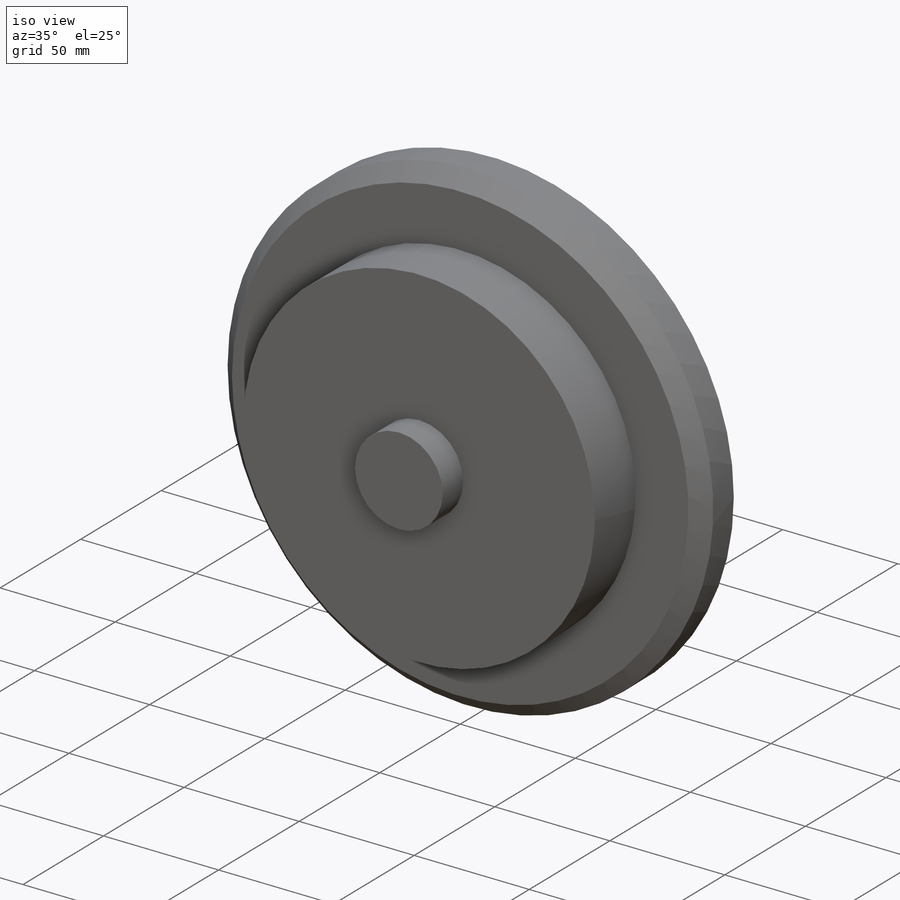
[diagram: iso view]
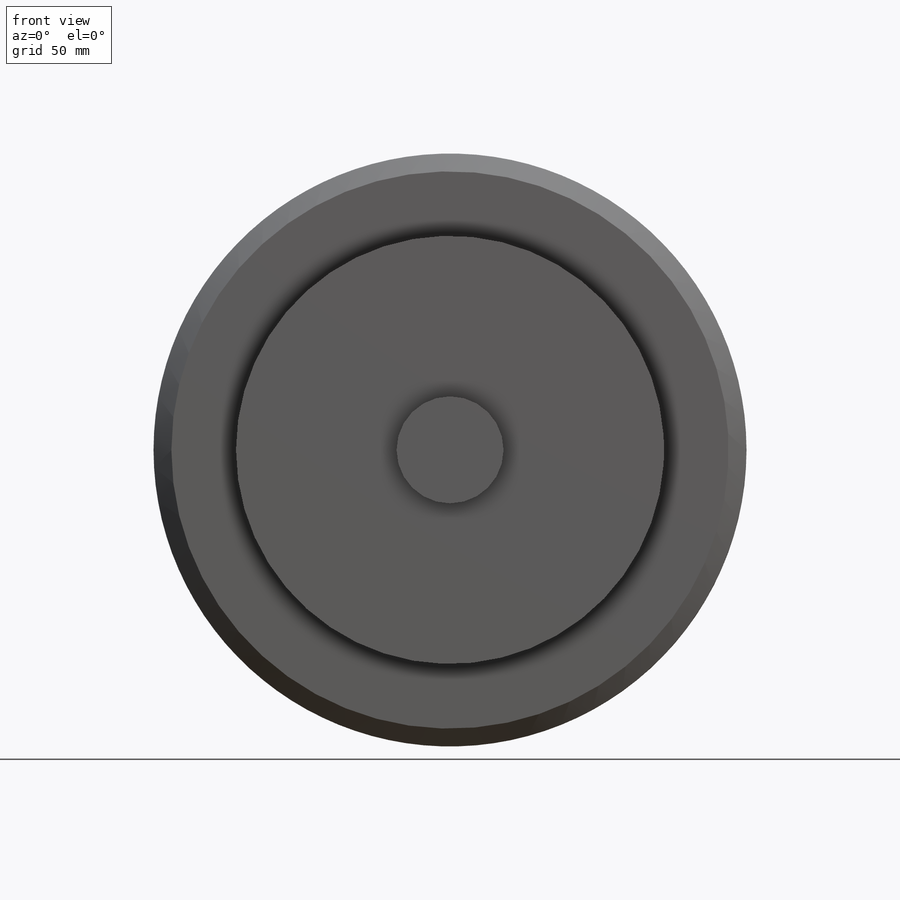
[diagram: front view]
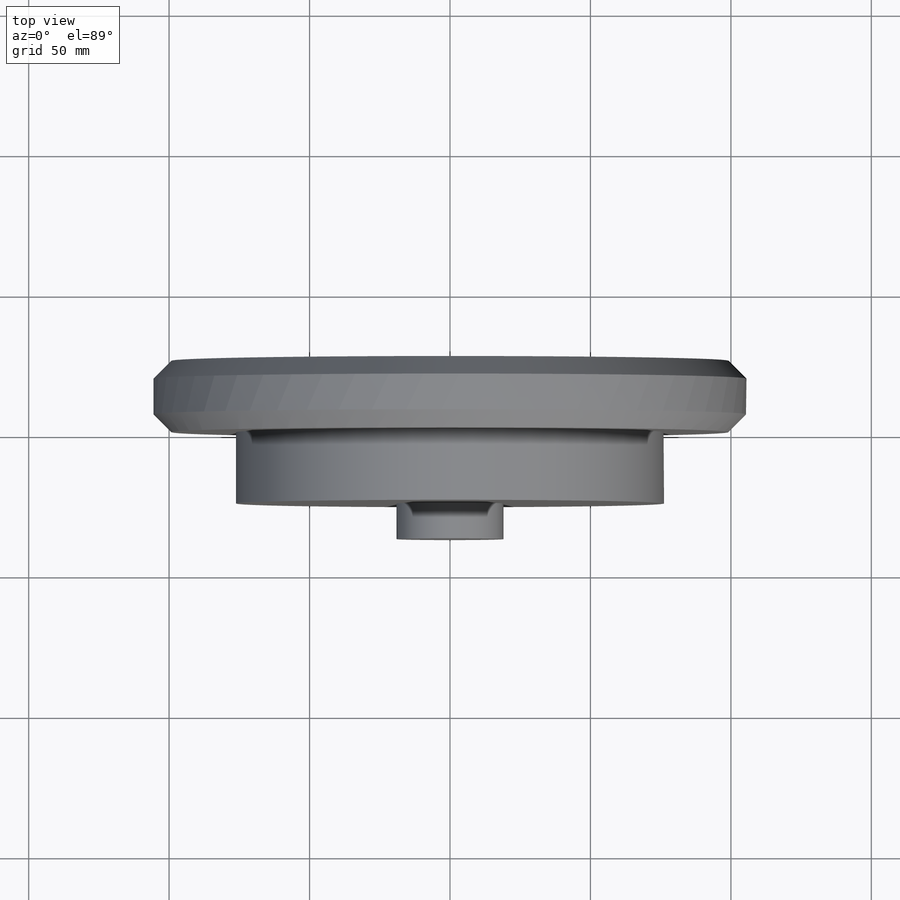
[diagram: top view]
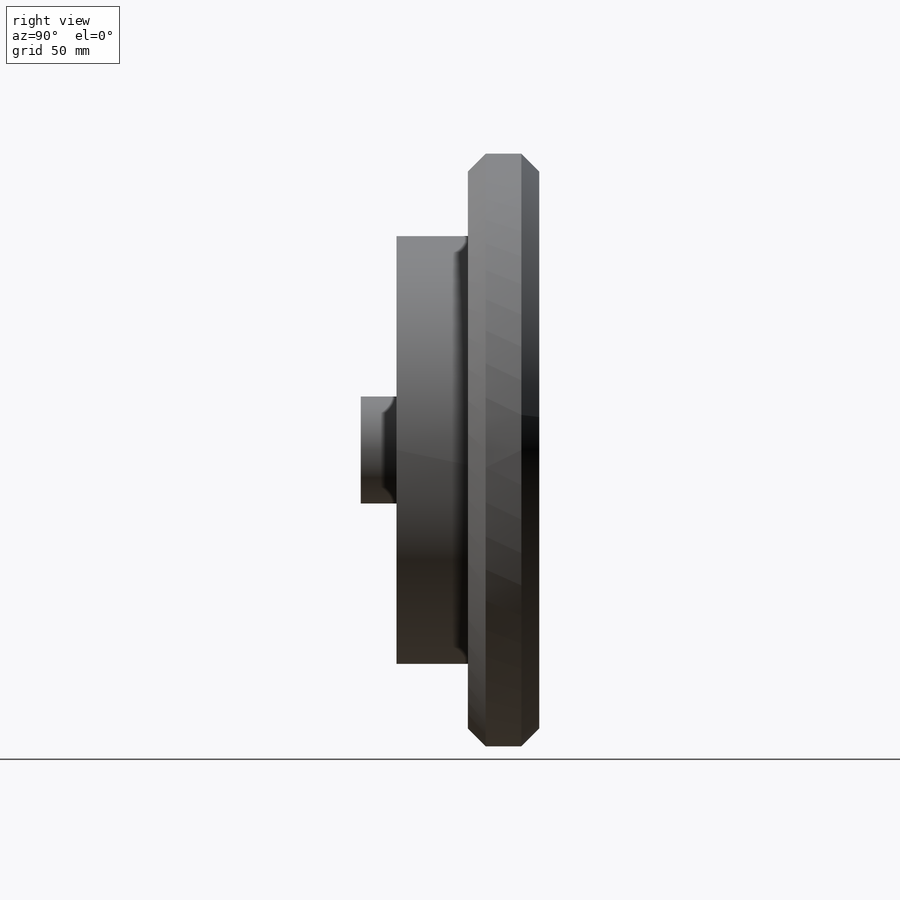
[diagram: right view]
SOLIDWORKS PART (.sldprt)
format: sldprt  version: not decoded by parser v0  size: 166,912 bytes
history: native  units: mm
features: sketch x3, extrude x3, material x1, chamfer x1, shell x1 (+12 scaffold rows collapsed)
feature tree (21):
  scaffold x12  (default folders/planes/origin — collapsed)
  material  "Material <not specified>"
  sketch  "Sketch1"  dims[D1=~85.663252mm]
  extrude  "Boss-Extrude1"  Depth=25.4mm
  sketch  "Sketch2"  dims[D1=~24.733441mm]
  extrude  "Boss-Extrude2"  Depth=12.7mm
  sketch  "Sketch3"
  extrude  "Boss-Extrude4"  Depth=25.4mm
  chamfer  "Chamfer1"  Distance=6.35mm Angle=45deg
  shell  "Shell1"  Thickness=0.635mm
decode coverage: 7 of 8 modeling features carry decoded parameters
note: ~ marks probable driven/reference dimensions
note: suppression state not decoded; provenance and decode notes live in map.json
